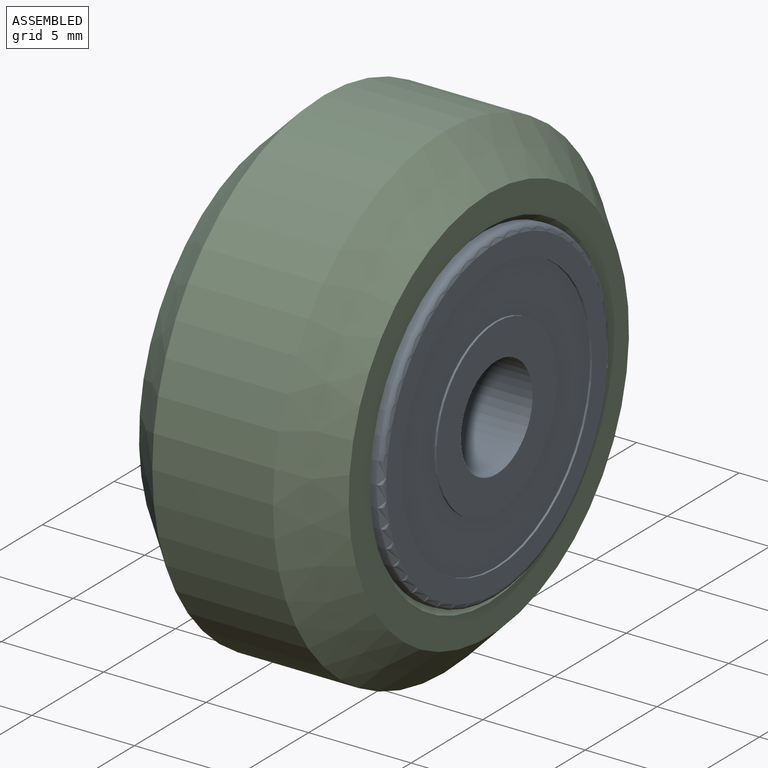
[diagram: assembled view]
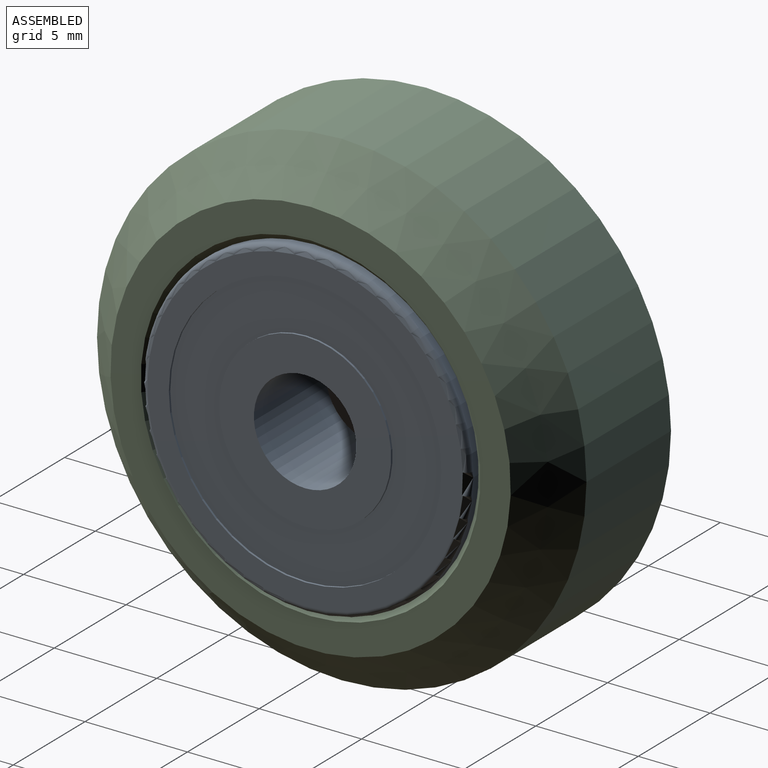
[diagram: assembled view, second angle]
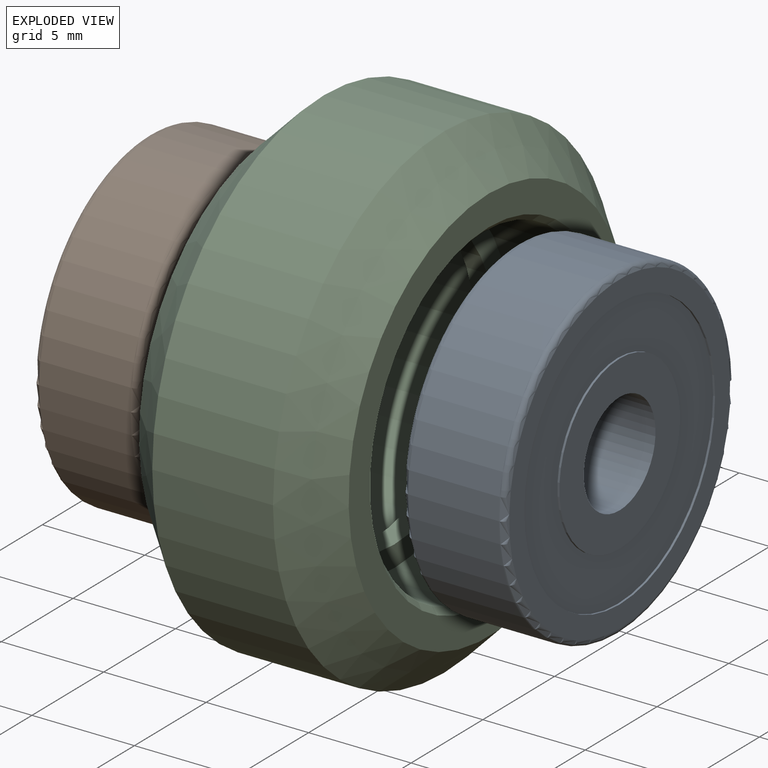
[diagram: exploded view]
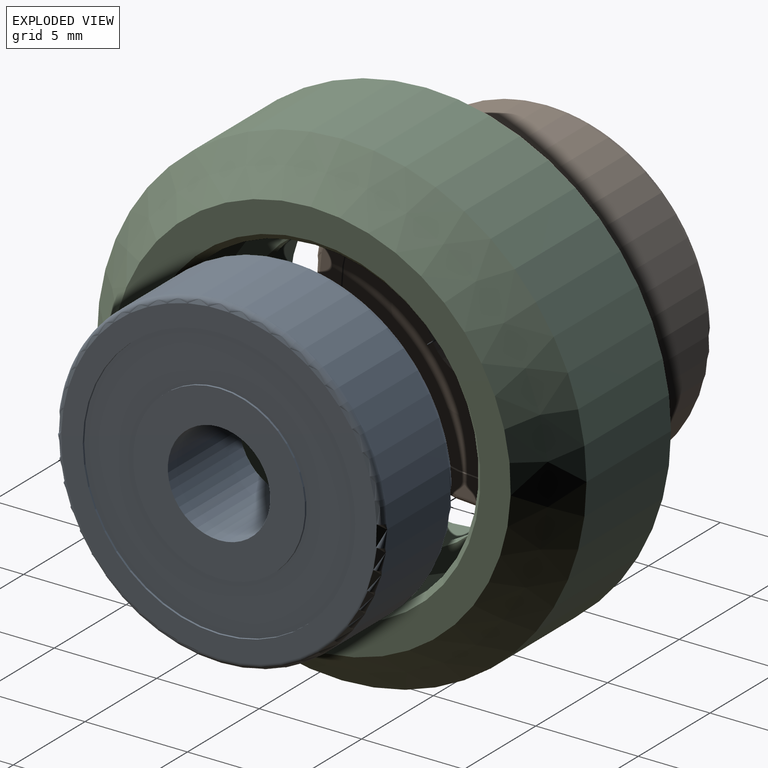
[diagram: exploded view, second angle]
ASSEMBLY  parts=3 mates=2
PART A: 14 faces, bbox 17.3x5x17.3 mm
  f0: cylinder r=6.65mm len=13.3mm, axis (0,-1,0), area 4.2mm2, adj f1,f11
  f1: plane 15.4x15.4mm, normal (0,1,0), area 47.3mm2, adj f0,f12
  f2: cylinder r=8mm len=16mm, axis (0,-1,0), area 221.2mm2, adj f12,f13
  f3: plane 15.4x15.4mm, normal (0,-1,0), area 47.3mm2, adj f4,f13
  f4: cylinder r=6.65mm len=13.3mm, axis (0,-1,0), area 4.2mm2, adj f3,f5
  f5: plane 13.3x13.3mm, normal (0,-1,0), area 83.5mm2, adj f4,f6
  f6: cylinder r=4.2mm len=8.4mm, axis (0,-1,0), area 2.6mm2, adj f5,f7
  f7: plane 8.4x8.4mm, normal (0,-1,0), area 35.8mm2, adj f6,f8
  f8: cylinder r=2.5mm len=5mm, axis (0,-1,0), area 78.5mm2, adj f7,f9
  f9: plane 8.4x8.4mm, normal (0,1,0), area 35.8mm2, adj f8,f10
  f10: cylinder r=4.2mm len=8.4mm, axis (0,-1,0), area 2.6mm2, adj f9,f11
  f11: plane 13.3x13.3mm, normal (0,1,0), area 83.5mm2, adj f0,f10
  f12: torus R=7.7mm, axis (0,-1,0), area 23.4mm2, adj f1,f2
  f13: torus R=7.7mm, axis (0,-1,0), area 23.4mm2, adj f2,f3
PART B: same geometry as A
PART C: 12 faces, bbox 10.2x23.9x23.9 mm
  f0: cone r=8.29mm half-angle=45deg, axis (1,0,0), area 21.7mm2, adj f1,f11
  f1: plane 19.54x19.54mm, normal (1,0,0), area 84.1mm2, adj f0,f2
  f2: cone r=11.95mm half-angle=45.1deg, axis (-1,0,0), area 209.6mm2, adj f1,f3
  f3: cylinder r=11.95mm len=23.89mm, axis (-1,0,0), area 442.1mm2, adj f2,f4
  f4: cone r=11.95mm half-angle=45.1deg, axis (1,0,0), area 209.6mm2, adj f3,f5
  f5: plane 19.54x19.54mm, normal (-1,0,0), area 84.1mm2, adj f4,f6
  f6: cone r=8.29mm half-angle=45deg, axis (-1,0,0), area 21.7mm2, adj f5,f7
  f7: cylinder r=7.99mm len=15.97mm, axis (-1,0,0), area 216.5mm2, adj f6,f8
  f8: plane 15.97x15.97mm, normal (-1,0,0), area 48.9mm2, adj f7,f9
  f9: cylinder r=6.94mm len=13.89mm, axis (-1,0,0), area 43.6mm2, adj f8,f10
  f10: plane 15.97x15.97mm, normal (1,0,0), area 48.9mm2, adj f9,f11
  f11: cylinder r=7.99mm len=15.97mm, axis (-1,0,0), area 216.5mm2, adj f0,f10
PLACE A rot(axis=(0,0,-1),90deg) t=(-8.1,6.82,7.36)mm
PLACE B rot(axis=(0,0,-1),90deg) t=(-14.1,6.82,7.36)mm
PLACE C rot(axis=(0,0,-1),0deg) t=(-11.1,6.82,7.36)mm fixed
MATE revolute C.f0 <-> A.f0  axis (1,0,0) through (-10.6,6.82,7.36)mm
MATE revolute C.f0 <-> B.f0  axis (-1,0,0) through (-11.6,6.82,7.36)mm
